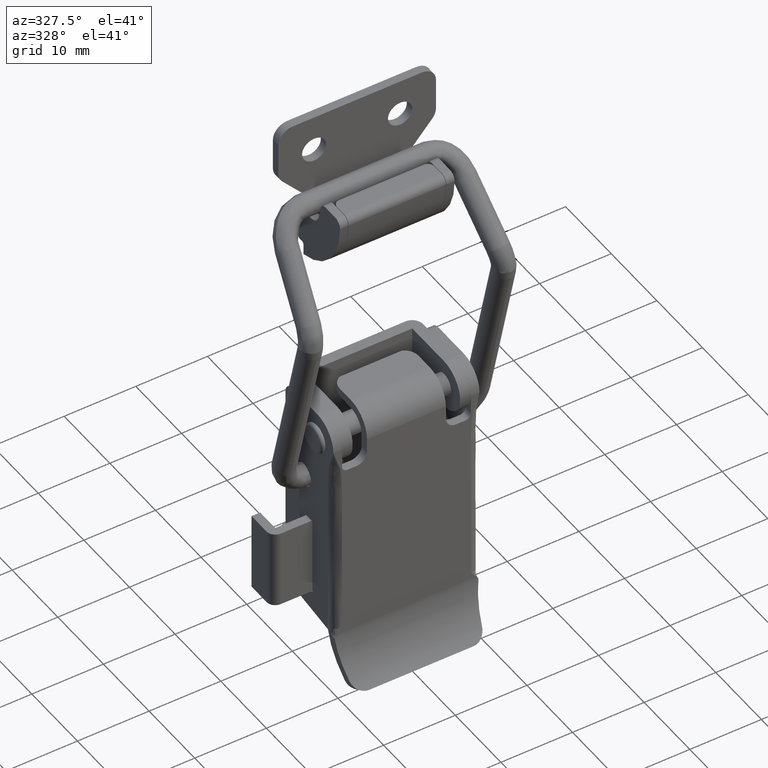
[diagram: clean part render]
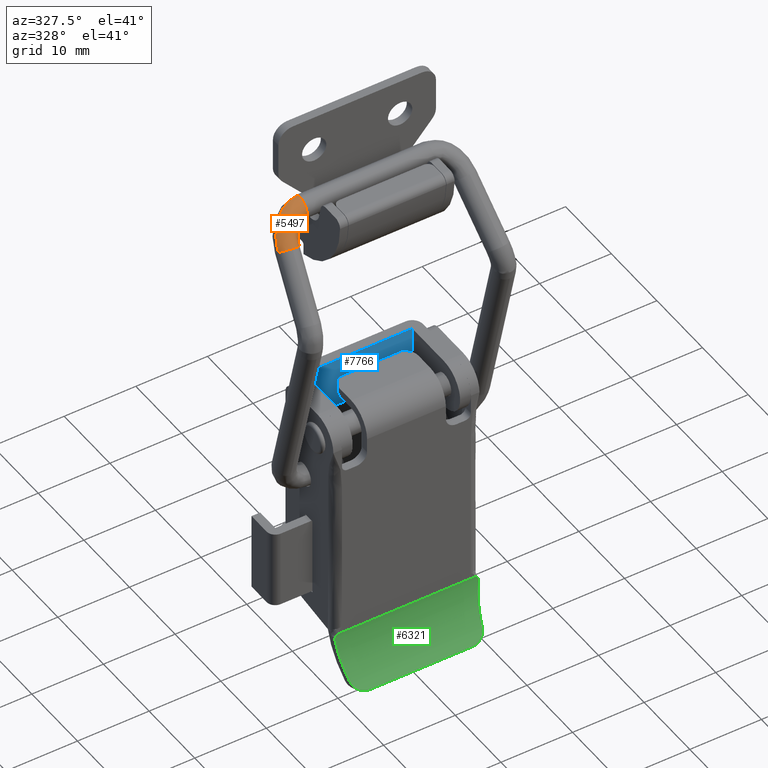
[diagram: same view with three faces highlighted in distinct colors, each labeled with its STEP entity id]
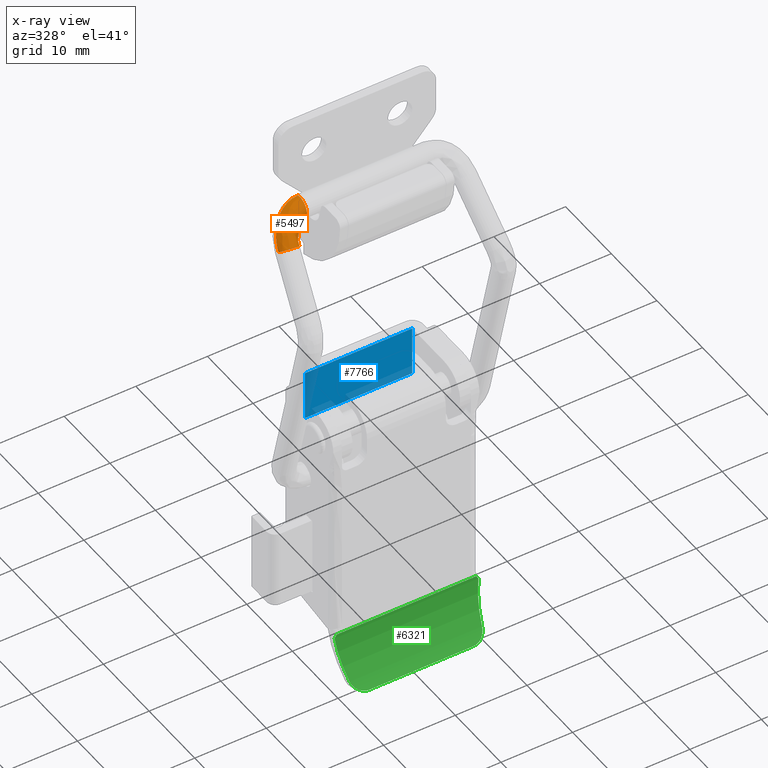
[diagram: x-ray of the same camera — body ghosted, the three highlighted faces saturated]
A machine part, auxiliary view with three faces highlighted in distinct colors.
The next image is the same camera in x-ray (body ghosted, the three faces saturated) — at least one of them is partly hidden behind the body in this view.
Their STEP definitions:

[orange] entity #5497 — the highlighted face is a freeform B-spline surface patch.
#4998 = VERTEX_POINT ( 'NONE', #8175 ) ;
#4999 = EDGE_CURVE ( 'NONE', #4998, #5001, #8174, .T. ) ;
#5001 = VERTEX_POINT ( 'NONE', #8173 ) ;
#5016 = VERTEX_POINT ( 'NONE', #8237 ) ;
#5023 = VERTEX_POINT ( 'NONE', #8233 ) ;
#5090 = EDGE_CURVE ( 'NONE', #5124, #5016, #8750, .T. ) ;
#5093 = EDGE_CURVE ( 'NONE', #5023, #5094, #8810, .T. ) ;
#5094 = VERTEX_POINT ( 'NONE', #8811 ) ;
#5097 = EDGE_CURVE ( 'NONE', #4998, #5124, #8868, .T. ) ;
#5124 = VERTEX_POINT ( 'NONE', #8989 ) ;
#5429 = ORIENTED_EDGE ( 'NONE', *, *, #5093, .F. ) ;
#5430 = ORIENTED_EDGE ( 'NONE', *, *, #5475, .F. ) ;
#5431 = ORIENTED_EDGE ( 'NONE', *, *, #4999, .F. ) ;
#5432 = ORIENTED_EDGE ( 'NONE', *, *, #5097, .T. ) ;
#5433 = ORIENTED_EDGE ( 'NONE', *, *, #5090, .T. ) ;
#5434 = ORIENTED_EDGE ( 'NONE', *, *, #5435, .T. ) ;
#5435 = EDGE_CURVE ( 'NONE', #5016, #5094, #10179, .T. ) ;
#5475 = EDGE_CURVE ( 'NONE', #5001, #5023, #10545, .T. ) ;
#5476 = EDGE_LOOP ( 'NONE', ( #5429, #5430, #5431, #5432, #5433, #5434 ) ) ;
#5497 = ADVANCED_FACE ( 'NONE', ( #10323 ), #10643, .F. ) ;
#8167 = CARTESIAN_POINT ( 'NONE',  ( 7.592126646399667400E-006, 8.903595402811769000, 1.499279425890444500 ) ) ;
#8168 = CARTESIAN_POINT ( 'NONE',  ( 0.09312660322741329900, 8.903595402811776100, 1.500010976130436500 ) ) ;
#8169 = CARTESIAN_POINT ( 'NONE',  ( 0.1862441321994738900, 8.903595402811774300, 1.491314753973896500 ) ) ;
#8170 = CARTESIAN_POINT ( 'NONE',  ( 0.3692624028616317000, 8.903595402811779600, 1.456829979447854800 ) ) ;
#8171 = CARTESIAN_POINT ( 'NONE',  ( 0.4591594809657743600, 8.903595402811776100, 1.431042117380664700 ) ) ;
#8172 = CARTESIAN_POINT ( 'NONE',  ( 0.5458935358816376900, 8.903595402811769000, 1.397153690367568100 ) ) ;
#8173 = CARTESIAN_POINT ( 'NONE',  ( 7.592126646399667400E-006, 8.903595402811769000, 1.499279425890444500 ) ) ;
#8174 = B_SPLINE_CURVE_WITH_KNOTS ( 'NONE', 3,
 ( #8172, #8171, #8170, #8169, #8168, #8167 ),
 .UNSPECIFIED., .F., .F.,
 ( 4, 2, 4 ),
 ( 0.0000000000000000000, 0.02964082409642765700, 0.05928164819285532800 ),
 .UNSPECIFIED. ) ;
#8175 = CARTESIAN_POINT ( 'NONE',  ( 0.5458935358816376900, 8.903595402811769000, 1.397153690367568100 ) ) ;
#8233 = CARTESIAN_POINT ( 'NONE',  ( -0.5458798888768848800, 8.903595402811769000, -1.397131690367736700 ) ) ;
#8237 = CARTESIAN_POINT ( 'NONE',  ( -3.750612820472632300, 12.37936745638170100, -2.122456599798598900 ) ) ;
#8750 = B_SPLINE_CURVE_WITH_KNOTS ( 'NONE', 3,
 ( #8824, #8823, #8822, #8821, #8820, #8819 ),
 .UNSPECIFIED., .F., .F.,
 ( 4, 2, 4 ),
 ( 0.0000000000000000000, 0.1249999999999998600, 0.1977871901388925900 ),
 .UNSPECIFIED. ) ;
#8802 = CARTESIAN_POINT ( 'NONE',  ( -2.317334210100068700, 10.96511457976340500, -3.498168470992615300 ) ) ;
#8803 = CARTESIAN_POINT ( 'NONE',  ( -1.808400454468467500, 10.89369392932929000, -2.894546616933030100 ) ) ;
#8804 = CARTESIAN_POINT ( 'NONE',  ( -1.322245222087361700, 10.59748341616195900, -2.317941276445922000 ) ) ;
#8805 = CARTESIAN_POINT ( 'NONE',  ( -0.6856679126484052100, 9.788219052390633800, -1.562927542911850100 ) ) ;
#8806 = CARTESIAN_POINT ( 'NONE',  ( -0.5458956603648760200, 9.311384980569918900, -1.397150396255045100 ) ) ;
#8807 = CARTESIAN_POINT ( 'NONE',  ( -0.5458798888768848800, 8.903595402811769000, -1.397131690367736700 ) ) ;
#8810 = B_SPLINE_CURVE_WITH_KNOTS ( 'NONE', 3,
 ( #8807, #8806, #8805, #8804, #8803, #8802 ),
 .UNSPECIFIED., .F., .F.,
 ( 4, 2, 4 ),
 ( 0.6669965125208759900, 0.7217108061741290800, 0.7764250998273810600 ),
 .UNSPECIFIED. ) ;
#8811 = CARTESIAN_POINT ( 'NONE',  ( -2.317334210100068700, 10.96511457976340500, -3.498168470992615300 ) ) ;
#8819 = CARTESIAN_POINT ( 'NONE',  ( -3.750612820472632300, 12.37936745638170100, -2.122456599798598900 ) ) ;
#8820 = CARTESIAN_POINT ( 'NONE',  ( -3.736524960315655200, 12.60704484711007100, -2.107406642955856200 ) ) ;
#8821 = CARTESIAN_POINT ( 'NONE',  ( -3.683927536556893800, 12.83474946194859400, -2.124822166225941000 ) ) ;
#8822 = CARTESIAN_POINT ( 'NONE',  ( -3.441783285926864900, 13.38998183100005900, -2.263313530214805100 ) ) ;
#8823 = CARTESIAN_POINT ( 'NONE',  ( -3.182947587221924800, 13.66762473340480000, -2.448709124671919900 ) ) ;
#8824 = CARTESIAN_POINT ( 'NONE',  ( -2.891382975928778800, 13.79362486761162600, -2.679634680616604900 ) ) ;
#8862 = CARTESIAN_POINT ( 'NONE',  ( -2.067869586239297500, 13.67804488064272100, -1.702905050479620400 ) ) ;
#8863 = CARTESIAN_POINT ( 'NONE',  ( -1.237106760159281300, 13.22170498425444900, -0.7175772157411225400 ) ) ;
#8864 = CARTESIAN_POINT ( 'NONE',  ( 0.07205321392842001200, 11.55740353171122200, 0.8351544716255374600 ) ) ;
#8865 = CARTESIAN_POINT ( 'NONE',  ( 0.5457905735058228300, 10.31671120811812200, 1.397031571475984900 ) ) ;
#8866 = CARTESIAN_POINT ( 'NONE',  ( 0.5458935358816376900, 8.903595402811769000, 1.397153690367568100 ) ) ;
#8868 = B_SPLINE_CURVE_WITH_KNOTS ( 'NONE', 3,
 ( #8866, #8865, #8864, #8863, #8862, #8943 ),
 .UNSPECIFIED., .F., .F.,
 ( 4, 2, 4 ),
 ( 0.6669965125208759900, 0.7217108061741290800, 0.7764250998273810600 ),
 .UNSPECIFIED. ) ;
#8943 = CARTESIAN_POINT ( 'NONE',  ( -2.891382975928778800, 13.79362486761162600, -2.679634680616604900 ) ) ;
#8989 = CARTESIAN_POINT ( 'NONE',  ( -2.891382975928778800, 13.79362486761162600, -2.679634680616604900 ) ) ;
#10157 = CARTESIAN_POINT ( 'NONE',  ( -2.317334210100068700, 10.96511457976340500, -3.498168470992615300 ) ) ;
#10158 = CARTESIAN_POINT ( 'NONE',  ( -2.608898821391799800, 10.83911444555644500, -3.267242915048522700 ) ) ;
#10159 = CARTESIAN_POINT ( 'NONE',  ( -2.929601533069312100, 10.86630885504412300, -2.993631399502507200 ) ) ;
#10160 = CARTESIAN_POINT ( 'NONE',  ( -3.448204138476205200, 11.21173192715052000, -2.515526270904239900 ) ) ;
#10161 = CARTESIAN_POINT ( 'NONE',  ( -3.642910564115130300, 11.52783353227416000, -2.313976749254889500 ) ) ;
#10162 = CARTESIAN_POINT ( 'NONE',  ( -3.749440708905254400, 12.05273947832157900, -2.162075850942881700 ) ) ;
#10163 = CARTESIAN_POINT ( 'NONE',  ( -3.759805675208243200, 12.21604646325552100, -2.134022127514387800 ) ) ;
#10164 = CARTESIAN_POINT ( 'NONE',  ( -3.750612820472632300, 12.37936745638170100, -2.122456599798598900 ) ) ;
#10179 = B_SPLINE_CURVE_WITH_KNOTS ( 'NONE', 3,
 ( #10164, #10163, #10162, #10161, #10160, #10159, #10158, #10157 ),
 .UNSPECIFIED., .F., .F.,
 ( 4, 2, 2, 4 ),
 ( 0.1977871901388925900, 0.2499999999999998100, 0.3749999999999998900, 0.5000000000000000000 ),
 .UNSPECIFIED. ) ;
#10323 = FACE_OUTER_BOUND ( 'NONE', #5476, .T. ) ;
#10534 = CARTESIAN_POINT ( 'NONE',  ( -0.5458798888768848800, 8.903595402811769000, -1.397131690367736700 ) ) ;
#10535 = CARTESIAN_POINT ( 'NONE',  ( -0.8682839624250269200, 8.903595402811777900, -1.271163096765749500 ) ) ;
#10536 = CARTESIAN_POINT ( 'NONE',  ( -1.144219957218452800, 8.903595402811779600, -1.029822747502859800 ) ) ;
#10537 = CARTESIAN_POINT ( 'NONE',  ( -1.479779325382022200, 8.903595402811777900, -0.4243066013132542600 ) ) ;
#10538 = CARTESIAN_POINT ( 'NONE',  ( -1.538147198586876400, 8.903595402811779600, -0.06239635168979679200 ) ) ;
#10539 = CARTESIAN_POINT ( 'NONE',  ( -1.409961887830030000, 8.903595402811777900, 0.6179112397457364700 ) ) ;
#10540 = CARTESIAN_POINT ( 'NONE',  ( -1.223888311038062500, 8.903595402811772500, 0.9337632009946962300 ) ) ;
#10541 = CARTESIAN_POINT ( 'NONE',  ( -0.6909765066044545300, 8.903595402811779600, 1.375639769228362000 ) ) ;
#10542 = CARTESIAN_POINT ( 'NONE',  ( -0.3461321760851387400, 8.903595402811774300, 1.500011088726291900 ) ) ;
#10543 = CARTESIAN_POINT ( 'NONE',  ( 7.592126646399667400E-006, 8.903595402811769000, 1.499279425890444500 ) ) ;
#10545 = B_SPLINE_CURVE_WITH_KNOTS ( 'NONE', 3,
 ( #10543, #10542, #10541, #10540, #10539, #10538, #10537, #10536, #10535, #10534 ),
 .UNSPECIFIED., .F., .F.,
 ( 4, 2, 2, 2, 4 ),
 ( 0.05928164819285532800, 0.1694612361446415100, 0.2796408240964276500, 0.3898204120482138300, 0.5000000000000000000 ),
 .UNSPECIFIED. ) ;
#10629 = CARTESIAN_POINT ( 'NONE',  ( -0.2423168577708195200, 10.17324593911505900, 1.531419736744390000 ) ) ;
#10630 = CARTESIAN_POINT ( 'NONE',  ( -0.2422282101502954700, 8.903595402811760100, 1.531524877585865000 ) ) ;
#10631 = CARTESIAN_POINT ( 'NONE',  ( -3.182947587221924800, 13.66762473340480000, -2.448709124671919900 ) ) ;
#10632 = CARTESIAN_POINT ( 'NONE',  ( -2.373447604582170200, 13.55401198711152100, -1.488600122739576000 ) ) ;
#10633 = CARTESIAN_POINT ( 'NONE',  ( -1.558035832144555100, 13.10480519032810100, -0.5214794344777000700 ) ) ;
#10634 = CARTESIAN_POINT ( 'NONE',  ( -0.2788370381080739800, 11.47859261743284000, 0.9957167380728581000 ) ) ;
#10635 = CARTESIAN_POINT ( 'NONE',  ( 0.1800239912438235100, 10.27192747167300100, 1.539949738054089900 ) ) ;
#10636 = CARTESIAN_POINT ( 'NONE',  ( 0.1801224348753245100, 8.903595402811760100, 1.540066497476130000 ) ) ;
#10637 = CARTESIAN_POINT ( 'NONE',  ( -2.891382975928780100, 13.79362486761161900, -2.679634680616604900 ) ) ;
#10638 = CARTESIAN_POINT ( 'NONE',  ( -2.067869586239297500, 13.67804488064272100, -1.702905050479620400 ) ) ;
#10639 = CARTESIAN_POINT ( 'NONE',  ( -1.237106760159281300, 13.22170498425444900, -0.7175772157411225400 ) ) ;
#10640 = CARTESIAN_POINT ( 'NONE',  ( 0.07205321392842001200, 11.55740353171122200, 0.8351544716255374600 ) ) ;
#10641 = CARTESIAN_POINT ( 'NONE',  ( 0.5457905735058228300, 10.31671120811812200, 1.397031571475984900 ) ) ;
#10642 = CARTESIAN_POINT ( 'NONE',  ( 0.5458935358816207100, 8.903595402811760100, 1.397153690367521900 ) ) ;
#10643 = B_SPLINE_SURFACE_WITH_KNOTS ( 'NONE', 3, 3, ( 
 ( #10642, #10641, #10640, #10639, #10638, #10637 ),
 ( #10636, #10635, #10634, #10633, #10632, #10631 ),
 ( #10630, #10629, #10690, #10689, #10688, #10687 ),
 ( #10686, #10685, #10684, #10683, #10682, #10681 ),
 ( #10680, #10679, #10678, #10677, #10676, #10675 ),
 ( #10674, #10673, #10672, #10671, #10670, #10669 ),
 ( #10668, #10667, #10666, #10665, #10664, #10663 ),
 ( #10662, #10661, #10660, #10659, #10658, #10657 ),
 ( #10656, #10655, #10654, #10653, #10652, #10651 ),
 ( #10650, #10715, #10714, #10713, #10712, #10711 ) ),
 .UNSPECIFIED., .F., .F., .F.,
 ( 4, 2, 2, 2, 4 ),
 ( 4, 2, 4 ),
 ( 0.0000000000000000000, 0.1250000000000000000, 0.2500000000000000000, 0.3750000000000000000, 0.5000000000000000000 ),
 ( 0.6669965125208759900, 0.7217108061741290800, 0.7764250998273810600 ),
 .UNSPECIFIED. ) ;
#10650 = CARTESIAN_POINT ( 'NONE',  ( -0.5458798888771220200, 8.903595402811760100, -1.397131690367696900 ) ) ;
#10651 = CARTESIAN_POINT ( 'NONE',  ( -2.608898821392910100, 10.83911444555654000, -3.267242915047575000 ) ) ;
#10652 = CARTESIAN_POINT ( 'NONE',  ( -2.113978480915365200, 10.76966081263795900, -2.680241698812400000 ) ) ;
#10653 = CARTESIAN_POINT ( 'NONE',  ( -1.643174294072635000, 10.48058362223645900, -2.121843495182500000 ) ) ;
#10654 = CARTESIAN_POINT ( 'NONE',  ( -1.036558164684900000, 9.709408138111419000, -1.402365276464530000 ) ) ;
#10655 = CARTESIAN_POINT ( 'NONE',  ( -0.9116639655538479900, 9.266601263092859100, -1.254234273155369900 ) ) ;
#10656 = CARTESIAN_POINT ( 'NONE',  ( -0.9116509898834180800, 8.903595402811760100, -1.254218883259083900 ) ) ;
#10657 = CARTESIAN_POINT ( 'NONE',  ( -2.929601533070210100, 10.86630885504472100, -2.993631399501679400 ) ) ;
#10658 = CARTESIAN_POINT ( 'NONE',  ( -2.431656699285730500, 10.79643068659645900, -2.403042977199445000 ) ) ;
#10659 = CARTESIAN_POINT ( 'NONE',  ( -1.957539320687460100, 10.50581391968932000, -1.840715156165215100 ) ) ;
#10660 = CARTESIAN_POINT ( 'NONE',  ( -1.344456717241989900, 9.726417772970082300, -1.113567363542050000 ) ) ;
#10661 = CARTESIAN_POINT ( 'NONE',  ( -1.216351378426150200, 9.276266861569199700, -0.9616277818781638900 ) ) ;
#10662 = CARTESIAN_POINT ( 'NONE',  ( -1.216337832366269900, 8.903595402811760100, -0.9616117154696849400 ) ) ;
#10663 = CARTESIAN_POINT ( 'NONE',  ( -3.448204138476205200, 11.21173192715052000, -2.515526270904239900 ) ) ;
#10664 = CARTESIAN_POINT ( 'NONE',  ( -2.911842228063990000, 11.13646125615262000, -1.879373201448705000 ) ) ;
#10665 = CARTESIAN_POINT ( 'NONE',  ( -2.395640724353724800, 10.82628886363025900, -1.267131423510407900 ) ) ;
#10666 = CARTESIAN_POINT ( 'NONE',  ( -1.700421042861979900, 9.942473956536611400, -0.4425647926160384800 ) ) ;
#10667 = CARTESIAN_POINT ( 'NONE',  ( -1.531528520417714900, 9.399039188176361700, -0.2422494939360830000 ) ) ;
#10668 = CARTESIAN_POINT ( 'NONE',  ( -1.531507054083710100, 8.903595402811760100, -0.2422240336526355100 ) ) ;
#10669 = CARTESIAN_POINT ( 'NONE',  ( -3.642910564115130300, 11.52783353227416000, -2.313976749254889500 ) ) ;
#10670 = CARTESIAN_POINT ( 'NONE',  ( -3.071392639314145100, 11.44762801769666000, -1.636126821750270200 ) ) ;
#10671 = CARTESIAN_POINT ( 'NONE',  ( -2.516679346249739900, 11.11956007902758100, -0.9782080625494458100 ) ) ;
#10672 = CARTESIAN_POINT ( 'NONE',  ( -1.746294847154465000, 10.14019006740552000, -0.06449205619304269900 ) ) ;
#10673 = CARTESIAN_POINT ( 'NONE',  ( -1.540078316513330000, 9.511389914563729100, 0.1800914536744389900 ) ) ;
#10674 = CARTESIAN_POINT ( 'NONE',  ( -1.540048673973974900, 8.903595402811770800, 0.1801266113729825000 ) ) ;
#10675 = CARTESIAN_POINT ( 'NONE',  ( -3.793196179576025200, 12.26833579401643900, -2.099685104041625100 ) ) ;
#10676 = CARTESIAN_POINT ( 'NONE',  ( -3.139321492110279400, 12.17656958641580000, -1.324155780802959800 ) ) ;
#10677 = CARTESIAN_POINT ( 'NONE',  ( -2.494390149038719700, 11.80657967900366000, -0.5592337311999819900 ) ) ;
#10678 = CARTESIAN_POINT ( 'NONE',  ( -1.547923920094254900, 10.60336148099528100, 0.5633243471038220700 ) ) ;
#10679 = CARTESIAN_POINT ( 'NONE',  ( -1.254274396103014100, 9.774583693113189800, 0.9116079256823841300 ) ) ;
#10680 = CARTESIAN_POINT ( 'NONE',  ( -1.254223059756749900, 8.903595402811770800, 0.9116688133855790400 ) ) ;
#10681 = CARTESIAN_POINT ( 'NONE',  ( -3.747849935718475100, 12.68817656158200100, -2.088262552581204600 ) ) ;
#10682 = CARTESIAN_POINT ( 'NONE',  ( -3.047281640393400000, 12.58985565889610000, -1.257352186522726000 ) ) ;
#10683 = CARTESIAN_POINT ( 'NONE',  ( -2.351199583079655000, 12.19609751181600100, -0.4317627346567855000 ) ) ;
#10684 = CARTESIAN_POINT ( 'NONE',  ( -1.304900723725779900, 10.86596465163040100, 0.8092020255911669400 ) ) ;
#10685 = CARTESIAN_POINT ( 'NONE',  ( -0.9616806954707589600, 9.923806042877791000, 1.216278795403316100 ) ) ;
#10686 = CARTESIAN_POINT ( 'NONE',  ( -0.9616158919673479800, 8.903595402811760100, 1.216355655868423900 ) ) ;
#10687 = CARTESIAN_POINT ( 'NONE',  ( -3.441783285926864900, 13.38998183100005900, -2.263313530214805100 ) ) ;
#10688 = CARTESIAN_POINT ( 'NONE',  ( -2.663162025604335300, 13.28070389174546100, -1.339828295886291900 ) ) ;
#10689 = CARTESIAN_POINT ( 'NONE',  ( -1.881576494423065100, 12.84721500377632000, -0.4128272856349034500 ) ) ;
#10690 = CARTESIAN_POINT ( 'NONE',  ( -0.6683975426768120600, 11.30493176286708000, 1.026065926891780000 ) ) ;
#10711 = CARTESIAN_POINT ( 'NONE',  ( -2.317334210099764900, 10.96511457976336100, -3.498168470992260000 ) ) ;
#10712 = CARTESIAN_POINT ( 'NONE',  ( -1.808400454468467500, 10.89369392932929000, -2.894546616933030100 ) ) ;
#10713 = CARTESIAN_POINT ( 'NONE',  ( -1.322245222087361700, 10.59748341616195900, -2.317941276445922000 ) ) ;
#10714 = CARTESIAN_POINT ( 'NONE',  ( -0.6856679126484052100, 9.788219052390633800, -1.562927542911850100 ) ) ;
#10715 = CARTESIAN_POINT ( 'NONE',  ( -0.5458956603648760200, 9.311384980569918900, -1.397150396255045100 ) ) ;

[blue] entity #7766 — the highlighted planar face has unit normal (-0, -1, 0).
#3879 = CARTESIAN_POINT ( 'NONE',  ( 1.199993000002211900, -7.500000000000000000, -34.50002900000575300 ) ) ;
#3908 = CARTESIAN_POINT ( 'NONE',  ( 1.200000000002055900, 7.500000000000000000, -27.50002899999980200 ) ) ;
#3929 = CARTESIAN_POINT ( 'NONE',  ( 1.199993000002213900, 7.500000000000000000, -34.50002900000575300 ) ) ;
#3930 = CARTESIAN_POINT ( 'NONE',  ( 1.199986000002370100, 2.500000000000000400, -34.50002899999989800 ) ) ;
#3931 = CARTESIAN_POINT ( 'NONE',  ( 1.199986000002370100, -2.500000000000000400, -34.50002899999989800 ) ) ;
#3932 = CARTESIAN_POINT ( 'NONE',  ( 1.199993000002211900, -7.500000000000000000, -34.50002900000575300 ) ) ;
#3934 = B_SPLINE_CURVE_WITH_KNOTS ( 'NONE', 3,
 ( #3932, #3931, #3930, #3929 ),
 .UNSPECIFIED., .F., .F.,
 ( 4, 4 ),
 ( 0.0000000000000000000, 1.000000000000000000 ),
 .UNSPECIFIED. ) ;
#3936 = CARTESIAN_POINT ( 'NONE',  ( 1.199993000002213900, 7.500000000000000000, -34.50002900000575300 ) ) ;
#3964 = DIRECTION ( 'NONE',  ( 0.0000000000000000000, 0.0000000000000000000, 1.000000000000000000 ) ) ;
#3965 = VECTOR ( 'NONE', #3964, 1000.000000000000000 ) ;
#3966 = CARTESIAN_POINT ( 'NONE',  ( 1.200000000002055900, 7.500000000000000000, -1027.500029000000000 ) ) ;
#3967 = LINE ( 'NONE', #3966, #3965 ) ;
#4019 = DIRECTION ( 'NONE',  ( 0.0000000000000000000, 0.0000000000000000000, 1.000000000000000000 ) ) ;
#4020 = VECTOR ( 'NONE', #4019, 1000.000000000000000 ) ;
#4021 = CARTESIAN_POINT ( 'NONE',  ( 1.200000000002055900, -7.500000000000000000, -1027.500029000000000 ) ) ;
#4026 = LINE ( 'NONE', #4021, #4020 ) ;
#4033 = CARTESIAN_POINT ( 'NONE',  ( 1.200000000002055900, -7.500000000000000000, -27.50002899999980200 ) ) ;
#4099 = DIRECTION ( 'NONE',  ( -7.228014483236719200E-017, -1.000000000000000000, 0.0000000000000000000 ) ) ;
#4100 = VECTOR ( 'NONE', #4099, 1000.000000000000000 ) ;
#4101 = CARTESIAN_POINT ( 'NONE',  ( 1.200000000002055900, -8.673617379898928900E-017, -27.50002899999980200 ) ) ;
#4102 = LINE ( 'NONE', #4101, #4100 ) ;
#4103 = DIRECTION ( 'NONE',  ( -7.228014483236719200E-017, -1.000000000000000000, 0.0000000000000000000 ) ) ;
#4104 = DIRECTION ( 'NONE',  ( -1.000000000000000000, 7.228014483236719200E-017, 0.0000000000000000000 ) ) ;
#4105 = CARTESIAN_POINT ( 'NONE',  ( 1.200000000002055900, 7.500000000000000000, -1027.500029000000000 ) ) ;
#4106 = AXIS2_PLACEMENT_3D ( 'NONE', #4105, #4104, #4103 ) ;
#4107 = PLANE ( 'NONE',  #4106 ) ;
#4108 = FACE_OUTER_BOUND ( 'NONE', #7767, .T. ) ;
#7645 = VERTEX_POINT ( 'NONE', #3879 ) ;
#7647 = EDGE_CURVE ( 'NONE', #7645, #7648, #3934, .T. ) ;
#7648 = VERTEX_POINT ( 'NONE', #3936 ) ;
#7659 = VERTEX_POINT ( 'NONE', #3908 ) ;
#7664 = EDGE_CURVE ( 'NONE', #7648, #7659, #3967, .T. ) ;
#7704 = EDGE_CURVE ( 'NONE', #7645, #7732, #4026, .T. ) ;
#7732 = VERTEX_POINT ( 'NONE', #4033 ) ;
#7746 = ORIENTED_EDGE ( 'NONE', *, *, #7664, .F. ) ;
#7766 = ADVANCED_FACE ( 'NONE', ( #4108 ), #4107, .T. ) ;
#7767 = EDGE_LOOP ( 'NONE', ( #7768, #7769, #7770, #7746 ) ) ;
#7768 = ORIENTED_EDGE ( 'NONE', *, *, #7647, .F. ) ;
#7769 = ORIENTED_EDGE ( 'NONE', *, *, #7704, .T. ) ;
#7770 = ORIENTED_EDGE ( 'NONE', *, *, #7771, .F. ) ;
#7771 = EDGE_CURVE ( 'NONE', #7659, #7732, #4102, .T. ) ;

[green] entity #6321 — the highlighted cylindrical surface (partial cylindrical patch) has radius 10 mm, axis along (1, 0, 0).
#23 = DIRECTION ( 'NONE',  ( 0.0000000000000000000, 0.0000000000000000000, -1.000000000000000000 ) ) ;
#24 = DIRECTION ( 'NONE',  ( 0.0000000000000000000, -1.000000000000000000, 0.0000000000000000000 ) ) ;
#25 = CARTESIAN_POINT ( 'NONE',  ( -19.30001399999919800, 989.8000000000000700, -59.50002899999830000 ) ) ;
#26 = AXIS2_PLACEMENT_3D ( 'NONE', #25, #24, #23 ) ;
#27 = CYLINDRICAL_SURFACE ( 'NONE', #26, 10.00000000000218800 ) ;
#28 = CARTESIAN_POINT ( 'NONE',  ( -11.35879502180674000, -9.236472508482719900, -65.57761414053230500 ) ) ;
#159 = B_SPLINE_CURVE_WITH_KNOTS ( 'NONE', 3,
 ( #164, #163, #162, #204, #203, #202, #201, #200, #199, #198, #197, #196 ),
 .UNSPECIFIED., .F., .F.,
 ( 4, 2, 2, 2, 2, 4 ),
 ( 3.878959614448864200E-018, 0.0007220810198620751600, 0.001444162039724146400, 0.001805202549655173700, 0.002166243059586201400, 0.002888324079448243800 ),
 .UNSPECIFIED. ) ;
#162 = CARTESIAN_POINT ( 'NONE',  ( -11.65275314369845300, 9.129512322048315200, -65.94718805110778700 ) ) ;
#163 = CARTESIAN_POINT ( 'NONE',  ( -11.50588930219740500, 9.203715057556223700, -65.76981348682053900 ) ) ;
#164 = CARTESIAN_POINT ( 'NONE',  ( -11.35879502180676000, 9.236472508482831900, -65.57761414053230500 ) ) ;
#165 = CARTESIAN_POINT ( 'NONE',  ( -9.310981093827960500, 10.04291568299836100, -59.96824006295110400 ) ) ;
#166 = CARTESIAN_POINT ( 'NONE',  ( -9.407101174147641100, 9.791572406986176700, -62.01891062849069400 ) ) ;
#167 = CARTESIAN_POINT ( 'NONE',  ( -10.11111418279839000, 9.514327254074800100, -63.94734380645194000 ) ) ;
#168 = CARTESIAN_POINT ( 'NONE',  ( -11.35879502180676000, 9.236472508482831900, -65.57761414053230500 ) ) ;
#169 =( BOUNDED_CURVE ( )  B_SPLINE_CURVE ( 3, ( #168, #167, #166, #165 ),
 .UNSPECIFIED., .F., .T. ) 
 B_SPLINE_CURVE_WITH_KNOTS ( ( 4, 4 ),
 ( 1.426385336256124300, 2.032782041119251600 ),
 .UNSPECIFIED. ) 
 CURVE ( )  GEOMETRIC_REPRESENTATION_ITEM ( )  RATIONAL_B_SPLINE_CURVE ( ( 1.000000000000000000, 0.9695909511215227200, 0.9695909511215227200, 1.000000000000000000 ) ) 
 REPRESENTATION_ITEM ( '' )  );
#170 = CARTESIAN_POINT ( 'NONE',  ( -11.35879502180676000, 9.236472508482831900, -65.57761414053230500 ) ) ;
#171 = CARTESIAN_POINT ( 'NONE',  ( -9.310981093827960500, 10.04291568299836100, -59.96824006295110400 ) ) ;
#172 = CARTESIAN_POINT ( 'NONE',  ( -9.309732991673989500, 10.02620238690852300, -59.94161247024224800 ) ) ;
#173 = CARTESIAN_POINT ( 'NONE',  ( -9.308635279703111100, 10.00834778699969100, -59.91591699820518400 ) ) ;
#174 = CARTESIAN_POINT ( 'NONE',  ( -9.307667909171190200, 9.989432983768560700, -59.89120619917749600 ) ) ;
#175 = B_SPLINE_CURVE_WITH_KNOTS ( 'NONE', 3,
 ( #174, #173, #172, #171 ),
 .UNSPECIFIED., .F., .F.,
 ( 4, 4 ),
 ( 0.0009087612614868204900, 0.001001873437626341300 ),
 .UNSPECIFIED. ) ;
#196 = CARTESIAN_POINT ( 'NONE',  ( -12.56001399999762200, 7.254920033422869200, -66.88734244942109800 ) ) ;
#197 = CARTESIAN_POINT ( 'NONE',  ( -12.56001399999759900, 7.499301950128923100, -66.88734244942098400 ) ) ;
#198 = CARTESIAN_POINT ( 'NONE',  ( -12.52516266107869900, 7.738349039479137700, -66.85593975969173600 ) ) ;
#199 = CARTESIAN_POINT ( 'NONE',  ( -12.42708898310446700, 8.076343630532818500, -66.76397490800430000 ) ) ;
#200 = CARTESIAN_POINT ( 'NONE',  ( -12.38664158358623600, 8.185477592572175000, -66.72563580570334800 ) ) ;
#201 = CARTESIAN_POINT ( 'NONE',  ( -12.29454704579494300, 8.389232301583179600, -66.63638273508053100 ) ) ;
#202 = CARTESIAN_POINT ( 'NONE',  ( -12.24257564594062100, 8.485053654576411500, -66.58517246991637300 ) ) ;
#203 = CARTESIAN_POINT ( 'NONE',  ( -12.07009777728198900, 8.754337357190026500, -66.41053461500209200 ) ) ;
#204 = CARTESIAN_POINT ( 'NONE',  ( -11.93765333183134200, 8.902818404649334400, -66.27070871672003700 ) ) ;
#6280 = ORIENTED_EDGE ( 'NONE', *, *, #6281, .F. ) ;
#6281 = EDGE_CURVE ( 'NONE', #6309, #6308, #13842, .T. ) ;
#6282 = ORIENTED_EDGE ( 'NONE', *, *, #6283, .F. ) ;
#6283 = EDGE_CURVE ( 'NONE', #6284, #6309, #13838, .T. ) ;
#6284 = VERTEX_POINT ( 'NONE', #13833 ) ;
#6285 = ORIENTED_EDGE ( 'NONE', *, *, #6286, .F. ) ;
#6286 = EDGE_CURVE ( 'NONE', #6287, #6284, #13834, .T. ) ;
#6287 = VERTEX_POINT ( 'NONE', #13882 ) ;
#6288 = ORIENTED_EDGE ( 'NONE', *, *, #6289, .T. ) ;
#6289 = EDGE_CURVE ( 'NONE', #6287, #6290, #13881, .T. ) ;
#6290 = VERTEX_POINT ( 'NONE', #13877 ) ;
#6291 = ORIENTED_EDGE ( 'NONE', *, *, #6292, .T. ) ;
#6292 = EDGE_CURVE ( 'NONE', #6290, #6293, #13875, .T. ) ;
#6293 = VERTEX_POINT ( 'NONE', #13874 ) ;
#6294 = ORIENTED_EDGE ( 'NONE', *, *, #6353, .T. ) ;
#6295 = VERTEX_POINT ( 'NONE', #13876 ) ;
#6296 = EDGE_CURVE ( 'NONE', #6315, #6325, #13869, .T. ) ;
#6297 = ORIENTED_EDGE ( 'NONE', *, *, #6298, .F. ) ;
#6298 = EDGE_CURVE ( 'NONE', #6299, #6325, #13868, .T. ) ;
#6299 = VERTEX_POINT ( 'NONE', #13867 ) ;
#6300 = ORIENTED_EDGE ( 'NONE', *, *, #6301, .T. ) ;
#6301 = EDGE_CURVE ( 'NONE', #6299, #6302, #13892, .T. ) ;
#6302 = VERTEX_POINT ( 'NONE', #13891 ) ;
#6303 = ORIENTED_EDGE ( 'NONE', *, *, #6304, .T. ) ;
#6304 = EDGE_CURVE ( 'NONE', #6302, #6305, #13886, .T. ) ;
#6305 = VERTEX_POINT ( 'NONE', #13945 ) ;
#6306 = ORIENTED_EDGE ( 'NONE', *, *, #6307, .F. ) ;
#6307 = EDGE_CURVE ( 'NONE', #6308, #6305, #13940, .T. ) ;
#6308 = VERTEX_POINT ( 'NONE', #13936 ) ;
#6309 = VERTEX_POINT ( 'NONE', #13935 ) ;
#6315 = VERTEX_POINT ( 'NONE', #13924 ) ;
#6317 = EDGE_CURVE ( 'NONE', #6318, #6315, #13923, .T. ) ;
#6318 = VERTEX_POINT ( 'NONE', #13919 ) ;
#6321 = ADVANCED_FACE ( 'NONE', ( #13914 ), #27, .F. ) ;
#6322 = EDGE_LOOP ( 'NONE', ( #6323, #6324, #6297, #6300, #6303, #6306, #6280, #6282, #6285, #6288, #6291, #6294, #6354, #6357 ) ) ;
#6323 = ORIENTED_EDGE ( 'NONE', *, *, #6317, .T. ) ;
#6324 = ORIENTED_EDGE ( 'NONE', *, *, #6296, .T. ) ;
#6325 = VERTEX_POINT ( 'NONE', #28 ) ;
#6353 = EDGE_CURVE ( 'NONE', #6293, #6295, #175, .T. ) ;
#6354 = ORIENTED_EDGE ( 'NONE', *, *, #6355, .F. ) ;
#6355 = EDGE_CURVE ( 'NONE', #6356, #6295, #169, .T. ) ;
#6356 = VERTEX_POINT ( 'NONE', #170 ) ;
#6357 = ORIENTED_EDGE ( 'NONE', *, *, #6358, .T. ) ;
#6358 = EDGE_CURVE ( 'NONE', #6356, #6318, #159, .T. ) ;
#13833 = CARTESIAN_POINT ( 'NONE',  ( -9.300013999997629500, 9.000000000000230900, -59.50002899999979900 ) ) ;
#13834 = LINE ( 'NONE', #13885, #13884 ) ;
#13835 = DIRECTION ( 'NONE',  ( 0.0000000000000000000, -1.000000000000000000, 0.0000000000000000000 ) ) ;
#13836 = VECTOR ( 'NONE', #13835, 1000.000000000000000 ) ;
#13837 = CARTESIAN_POINT ( 'NONE',  ( -9.300013999997629500, 989.8000000000000700, -59.50002899999979900 ) ) ;
#13838 = LINE ( 'NONE', #13837, #13836 ) ;
#13839 = DIRECTION ( 'NONE',  ( 0.0000000000000000000, -1.000000000000000000, 0.0000000000000000000 ) ) ;
#13840 = VECTOR ( 'NONE', #13839, 1000.000000000000000 ) ;
#13841 = CARTESIAN_POINT ( 'NONE',  ( -9.300013999997620600, 989.8000000000000700, -59.50002899999979900 ) ) ;
#13842 = LINE ( 'NONE', #13841, #13840 ) ;
#13866 = CARTESIAN_POINT ( 'NONE',  ( -12.56001399999762200, -7.254920033422869200, -66.88734244942109800 ) ) ;
#13867 = CARTESIAN_POINT ( 'NONE',  ( -9.310981093827969300, -10.04291568299832000, -59.96824006295160100 ) ) ;
#13868 =( BOUNDED_CURVE ( )  B_SPLINE_CURVE ( 3, ( #13896, #13895, #13894, #13893 ),
 .UNSPECIFIED., .F., .T. ) 
 B_SPLINE_CURVE_WITH_KNOTS ( ( 4, 4 ),
 ( 1.108810612470590800, 1.715207317333668600 ),
 .UNSPECIFIED. ) 
 CURVE ( )  GEOMETRIC_REPRESENTATION_ITEM ( )  RATIONAL_B_SPLINE_CURVE ( ( 1.000000000000000000, 0.9695909511215276000, 0.9695909511215276000, 1.000000000000000000 ) ) 
 REPRESENTATION_ITEM ( '' )  );
#13869 = B_SPLINE_CURVE_WITH_KNOTS ( 'NONE', 3,
 ( #13866, #13911, #13910, #13909, #13908, #13907, #13906, #13905, #13904, #13903, #13902, #13901, #13900, #13899, #13898, #13897 ),
 .UNSPECIFIED., .F., .F.,
 ( 4, 2, 2, 2, 2, 2, 2, 4 ),
 ( 6.938893903907228400E-018, 0.0003608980222753491700, 0.0007217960445506914000, 0.001082694066826033600, 0.001443592089101375900, 0.001804490111376718100, 0.002165388133652060200, 0.002887184178202744800 ),
 .UNSPECIFIED. ) ;
#13870 = CARTESIAN_POINT ( 'NONE',  ( -9.307667909171190200, 9.989432983768560700, -59.89120619917749600 ) ) ;
#13871 = CARTESIAN_POINT ( 'NONE',  ( -9.302708915768212300, 9.892470773999292500, -59.76453220476073400 ) ) ;
#13872 = CARTESIAN_POINT ( 'NONE',  ( -9.300013999997048600, 9.803362628885720300, -59.63228777513213400 ) ) ;
#13873 = CARTESIAN_POINT ( 'NONE',  ( -9.300013999997629500, 9.714197333951661400, -59.50002514919689400 ) ) ;
#13874 = CARTESIAN_POINT ( 'NONE',  ( -9.307667909171190200, 9.989432983768560700, -59.89120619917749600 ) ) ;
#13875 = B_SPLINE_CURVE_WITH_KNOTS ( 'NONE', 3,
 ( #13873, #13872, #13871, #13870 ),
 .UNSPECIFIED., .F., .F.,
 ( 4, 4 ),
 ( 0.0000000000000000000, 0.0004783632692624821400 ),
 .UNSPECIFIED. ) ;
#13876 = CARTESIAN_POINT ( 'NONE',  ( -9.310981093827960500, 10.04291568299836100, -59.96824006295110400 ) ) ;
#13877 = CARTESIAN_POINT ( 'NONE',  ( -9.300013999997629500, 9.714197333951661400, -59.50002514919689400 ) ) ;
#13878 = DIRECTION ( 'NONE',  ( 0.0000000000000000000, 1.000000000000000000, 0.0000000000000000000 ) ) ;
#13879 = VECTOR ( 'NONE', #13878, 1000.000000000000000 ) ;
#13880 = CARTESIAN_POINT ( 'NONE',  ( -9.300013999997629500, 9.457098666975969800, -59.50002899999830000 ) ) ;
#13881 = LINE ( 'NONE', #13880, #13879 ) ;
#13882 = CARTESIAN_POINT ( 'NONE',  ( -9.300013999997620600, 9.200000000000208900, -59.50002899999979900 ) ) ;
#13883 = DIRECTION ( 'NONE',  ( 0.0000000000000000000, -1.000000000000000000, 0.0000000000000000000 ) ) ;
#13884 = VECTOR ( 'NONE', #13883, 1000.000000000000000 ) ;
#13885 = CARTESIAN_POINT ( 'NONE',  ( -9.300013999997620600, 989.8000000000000700, -59.50002899999979900 ) ) ;
#13886 = B_SPLINE_CURVE_WITH_KNOTS ( 'NONE', 3,
 ( #13944, #13943, #13942, #13941 ),
 .UNSPECIFIED., .F., .F.,
 ( 4, 4 ),
 ( 0.0000000000000000000, 0.0004783632692626585400 ),
 .UNSPECIFIED. ) ;
#13887 = CARTESIAN_POINT ( 'NONE',  ( -9.307667909171200900, -9.989432983768180600, -59.89120619917749600 ) ) ;
#13888 = CARTESIAN_POINT ( 'NONE',  ( -9.308645535765245800, -10.00854832173821400, -59.91617898209012300 ) ) ;
#13889 = CARTESIAN_POINT ( 'NONE',  ( -9.309744845535719900, -10.02636112159232200, -59.94186536605007400 ) ) ;
#13890 = CARTESIAN_POINT ( 'NONE',  ( -9.310981093827969300, -10.04291568299832000, -59.96824006295160100 ) ) ;
#13891 = CARTESIAN_POINT ( 'NONE',  ( -9.307667909171200900, -9.989432983768180600, -59.89120619917749600 ) ) ;
#13892 = B_SPLINE_CURVE_WITH_KNOTS ( 'NONE', 3,
 ( #13890, #13889, #13888, #13887 ),
 .UNSPECIFIED., .F., .F.,
 ( 4, 4 ),
 ( 0.0005780699404001804300, 0.0006714676357660145100 ),
 .UNSPECIFIED. ) ;
#13893 = CARTESIAN_POINT ( 'NONE',  ( -11.35879502180674000, -9.236472508482719900, -65.57761414053230500 ) ) ;
#13894 = CARTESIAN_POINT ( 'NONE',  ( -10.11111418279849000, -9.514327254074665100, -63.94734380645206100 ) ) ;
#13895 = CARTESIAN_POINT ( 'NONE',  ( -9.407101174147754800, -9.791572406986022200, -62.01891062849100000 ) ) ;
#13896 = CARTESIAN_POINT ( 'NONE',  ( -9.310981093827969300, -10.04291568299832000, -59.96824006295160100 ) ) ;
#13897 = CARTESIAN_POINT ( 'NONE',  ( -11.35879502180674000, -9.236472508482719900, -65.57761414053230500 ) ) ;
#13898 = CARTESIAN_POINT ( 'NONE',  ( -11.50576547394372700, -9.203742633733455100, -65.76965168780738200 ) ) ;
#13899 = CARTESIAN_POINT ( 'NONE',  ( -11.65448266505882600, -9.128201481300013900, -65.94916775346919700 ) ) ;
#13900 = CARTESIAN_POINT ( 'NONE',  ( -11.86604704080965100, -8.959762460007032900, -66.18938773335081300 ) ) ;
#13901 = CARTESIAN_POINT ( 'NONE',  ( -11.93566024653479100, -8.893391732288391100, -66.26578330756966300 ) ) ;
#13902 = CARTESIAN_POINT ( 'NONE',  ( -12.06634260772691300, -8.745668871634737900, -66.40532665797128700 ) ) ;
#13903 = CARTESIAN_POINT ( 'NONE',  ( -12.12787584212956400, -8.664133983004367300, -66.46903658885921100 ) ) ;
#13904 = CARTESIAN_POINT ( 'NONE',  ( -12.24233130990470500, -8.485431616043232600, -66.58492473494818900 ) ) ;
#13905 = CARTESIAN_POINT ( 'NONE',  ( -12.29531874550236700, -8.387741775139597100, -66.63714024230900200 ) ) ;
#13906 = CARTESIAN_POINT ( 'NONE',  ( -12.38742986236223800, -8.183513041747065800, -66.72638998140368500 ) ) ;
#13907 = CARTESIAN_POINT ( 'NONE',  ( -12.42715026888342500, -8.076184758085267000, -66.76403310202384500 ) ) ;
#13908 = CARTESIAN_POINT ( 'NONE',  ( -12.49258255828758900, -7.850578458728045400, -66.82538828314112300 ) ) ;
#13909 = CARTESIAN_POINT ( 'NONE',  ( -12.51780370473300200, -7.733361771367711400, -66.84864402151664800 ) ) ;
#13910 = CARTESIAN_POINT ( 'NONE',  ( -12.55136377354829100, -7.497073917683462000, -66.87947608936242700 ) ) ;
#13911 = CARTESIAN_POINT ( 'NONE',  ( -12.56001399999762200, -7.377009115193725800, -66.88734244942095600 ) ) ;
#13914 = FACE_OUTER_BOUND ( 'NONE', #6322, .T. ) ;
#13919 = CARTESIAN_POINT ( 'NONE',  ( -12.56001399999762200, 7.254920033422869200, -66.88734244942109800 ) ) ;
#13920 = DIRECTION ( 'NONE',  ( 0.0000000000000000000, -1.000000000000000000, 0.0000000000000000000 ) ) ;
#13921 = VECTOR ( 'NONE', #13920, 1000.000000000000000 ) ;
#13922 = CARTESIAN_POINT ( 'NONE',  ( -12.56001399999762200, 989.8000000000000700, -66.88734244942109800 ) ) ;
#13923 = LINE ( 'NONE', #13922, #13921 ) ;
#13924 = CARTESIAN_POINT ( 'NONE',  ( -12.56001399999762200, -7.254920033422869200, -66.88734244942109800 ) ) ;
#13935 = CARTESIAN_POINT ( 'NONE',  ( -9.300013999997629500, -8.999999999999900500, -59.50002899999979900 ) ) ;
#13936 = CARTESIAN_POINT ( 'NONE',  ( -9.300013999997629500, -9.199999999999871400, -59.50002899999979900 ) ) ;
#13937 = DIRECTION ( 'NONE',  ( 0.0000000000000000000, -1.000000000000000000, 0.0000000000000000000 ) ) ;
#13938 = VECTOR ( 'NONE', #13937, 1000.000000000000000 ) ;
#13939 = CARTESIAN_POINT ( 'NONE',  ( -9.300013999997029000, -9.457098666973639200, -59.50002899999830000 ) ) ;
#13940 = LINE ( 'NONE', #13939, #13938 ) ;
#13941 = CARTESIAN_POINT ( 'NONE',  ( -9.300013999997629500, -9.714197333947421200, -59.50002514919689400 ) ) ;
#13942 = CARTESIAN_POINT ( 'NONE',  ( -9.300013999997053900, -9.803362628884416500, -59.63228777513264600 ) ) ;
#13943 = CARTESIAN_POINT ( 'NONE',  ( -9.302708915768210600, -9.892470773998924800, -59.76453220476069800 ) ) ;
#13944 = CARTESIAN_POINT ( 'NONE',  ( -9.307667909171200900, -9.989432983768180600, -59.89120619917749600 ) ) ;
#13945 = CARTESIAN_POINT ( 'NONE',  ( -9.300013999997629500, -9.714197333947421200, -59.50002514919689400 ) ) ;